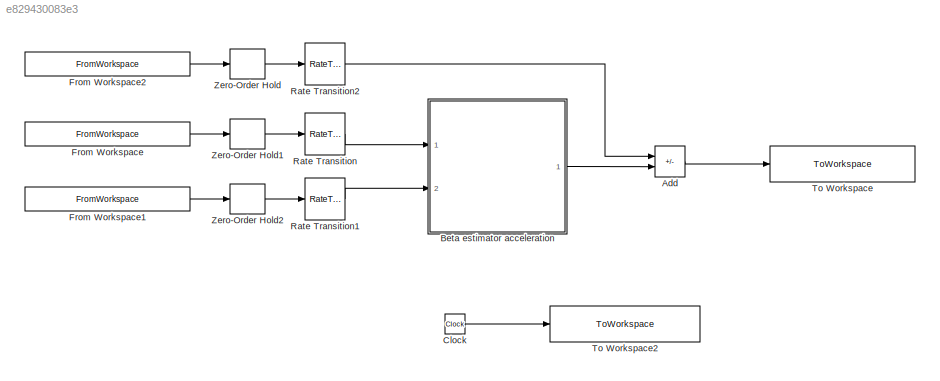
MODEL slx_e829430083e3
KIND model
CONFIG AbsTol = 1e-10
CONFIG EnableMultiTasking = off
CONFIG FixedStep = 1e-3
CONFIG MaxStep = auto
CONFIG MinStep = auto
CONFIG RelTol = 1e-6
CONFIG SampleTimeConstraint = Unconstrained
CONFIG SolverName = VariableStepAuto
CONFIG StartTime = 0.0
CONFIG StopTime = 10.0
BLOCK [Sum] Add
  IconShape = rectangular
  Inputs = -+
  Ports = [2, 1]
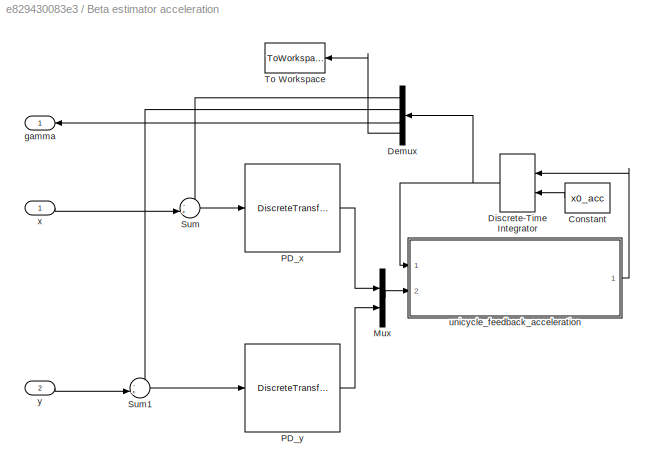
BLOCK [SubSystem] Beta estimator acceleration
  Ports = [2, 1]
  RequestExecContextInheritance = off
  SystemSampleTime = Ts
BLOCK [Constant] Beta estimator acceleration/Constant
  Value = x0_acc
BLOCK [Demux] Beta estimator acceleration/Demux
  Ports = [1, 4]
BLOCK [DiscreteIntegrator] Beta estimator acceleration/Discrete-Time Integrator
  ICPrevOutput = DiscIntNeverNeededParam
  ICPrevScaledInput = DiscIntNeverNeededParam
  InitialCondition = [0 0 0 0.1]
  InitialConditionSetting = Auto
  InitialConditionSource = external
  Ports = [2, 1]
  SampleTime = Ts
BLOCK [Mux] Beta estimator acceleration/Mux
  DisplayOption = bar
  Inputs = 2
  Ports = [2, 1]
BLOCK [DiscreteTransferFcn] Beta estimator acceleration/PD_x
  Denominator = Den_PDa
  InputPortMap = u0
  Numerator = Num_PDa
  Ports = [1, 1]
  SampleTime = Ts
  a0EqualsOne = on
BLOCK [DiscreteTransferFcn] Beta estimator acceleration/PD_y
  Denominator = Den_PDa
  InputPortMap = u0
  Numerator = Num_PDa
  Ports = [1, 1]
  SampleTime = Ts
  a0EqualsOne = on
BLOCK [Sum] Beta estimator acceleration/Sum
  Inputs = -+|
  Ports = [2, 1]
BLOCK [Sum] Beta estimator acceleration/Sum1
  Inputs = -+|
  Ports = [2, 1]
BLOCK [ToWorkspace] Beta estimator acceleration/To Workspace
  FixptAsFi = on
  MaxDataPoints = inf
  Ports = [1]
  SampleTime = -1
  SaveFormat = Timeseries
  VariableName = v
BLOCK [Outport] Beta estimator acceleration/gamma
  VectorParamsAs1DForOutWhenUnconnected = off
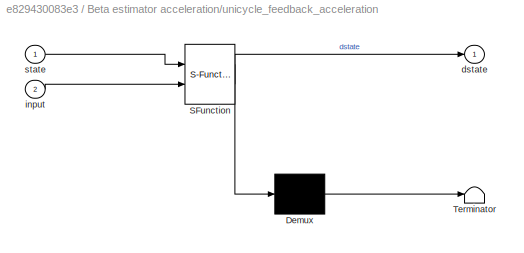
BLOCK [SubSystem] Beta estimator acceleration/unicycle_feedback_acceleration
  ErrorFcn = Stateflow.Translate.translate
  PermitHierarchicalResolution = ExplicitOnly
  Ports = [2, 1]
  RequestExecContextInheritance = off
  SFBlockType = MATLAB Function
  TreatAsAtomicUnit = on
BLOCK [Demux] Beta estimator acceleration/unicycle_feedback_acceleration/ Demux 
  Outputs = 1
  Ports = [1, 1]
BLOCK [S-Function] Beta estimator acceleration/unicycle_feedback_acceleration/ SFunction 
  EnableBusSupport = off
  FunctionName = sf_sfun
  PortCounts = [2 2]
  Ports = [2, 2]
  SFcnIsStateOwnerBlock = off
  SFunctionDeploymentMode = off
  Tag = Stateflow S-Function 2
BLOCK [Terminator] Beta estimator acceleration/unicycle_feedback_acceleration/ Terminator 
BLOCK [Outport] Beta estimator acceleration/unicycle_feedback_acceleration/dstate
  VectorParamsAs1DForOutWhenUnconnected = off
BLOCK [Inport] Beta estimator acceleration/unicycle_feedback_acceleration/input
  Port = 2
BLOCK [Inport] Beta estimator acceleration/unicycle_feedback_acceleration/state
BLOCK [Inport] Beta estimator acceleration/x
BLOCK [Inport] Beta estimator acceleration/y
  Port = 2
BLOCK [Clock] Clock
BLOCK [FromWorkspace] From Workspace
  OutputAfterFinalValue = Holding final value
  VariableName = [acc_cpp_res.t,acc_cpp_res.x]
BLOCK [FromWorkspace] From Workspace1
  OutputAfterFinalValue = Holding final value
  VariableName = [acc_cpp_res.t,acc_cpp_res.y]
BLOCK [FromWorkspace] From Workspace2
  OutputAfterFinalValue = Holding final value
  VariableName = [acc_cpp_res.t,acc_cpp_res.psi]
BLOCK [RateTransition] Rate Transition
  OutPortSampleTime = Ts
BLOCK [RateTransition] Rate Transition1
  OutPortSampleTime = Ts
BLOCK [RateTransition] Rate Transition2
  OutPortSampleTime = Ts
BLOCK [ToWorkspace] To Workspace
  FixptAsFi = on
  MaxDataPoints = inf
  Ports = [1]
  SampleTime = Ts
  Save2DSignal = 2-D array (concatenate along first dimension)
  VariableName = beta_est
BLOCK [ToWorkspace] To Workspace2
  FixptAsFi = on
  MaxDataPoints = inf
  Ports = [1]
  SampleTime = 0.001
  Save2DSignal = 2-D array (concatenate along first dimension)
  VariableName = t
BLOCK [ZeroOrderHold] Zero-Order Hold
  SampleTime = 0.01
BLOCK [ZeroOrderHold] Zero-Order Hold1
  SampleTime = 0.01
BLOCK [ZeroOrderHold] Zero-Order Hold2
  SampleTime = 0.01
LINE Add:1 -> To Workspace:1
LINE Beta estimator acceleration/Constant:1 -> Beta estimator acceleration/Discrete-Time Integrator:2
LINE Beta estimator acceleration/Demux:1 -> Beta estimator acceleration/Sum:1
LINE Beta estimator acceleration/Demux:2 -> Beta estimator acceleration/Sum1:1
LINE Beta estimator acceleration/Demux:3 -> Beta estimator acceleration/gamma:1
LINE Beta estimator acceleration/Demux:4 -> Beta estimator acceleration/To Workspace:1
NET Beta estimator acceleration/Discrete-Time Integrator:1 -> Beta estimator acceleration/Demux:1, Beta estimator acceleration/unicycle_feedback_acceleration:1
LINE Beta estimator acceleration/Mux:1 -> Beta estimator acceleration/unicycle_feedback_acceleration:2
LINE Beta estimator acceleration/PD_x:1 -> Beta estimator acceleration/Mux:1
LINE Beta estimator acceleration/PD_y:1 -> Beta estimator acceleration/Mux:2
LINE Beta estimator acceleration/Sum1:1 -> Beta estimator acceleration/PD_y:1
LINE Beta estimator acceleration/Sum:1 -> Beta estimator acceleration/PD_x:1
LINE Beta estimator acceleration/unicycle_feedback_acceleration:1 -> Beta estimator acceleration/Discrete-Time Integrator:1
LINE Beta estimator acceleration/x:1 -> Beta estimator acceleration/Sum:2
LINE Beta estimator acceleration/y:1 -> Beta estimator acceleration/Sum1:2
LINE Beta estimator acceleration:1 -> Add:2
LINE Clock:1 -> To Workspace2:1
LINE From Workspace1:1 -> Zero-Order Hold2:1
LINE From Workspace2:1 -> Zero-Order Hold:1
LINE From Workspace:1 -> Zero-Order Hold1:1
LINE Rate Transition1:1 -> Beta estimator acceleration:2
LINE Rate Transition2:1 -> Add:1
LINE Rate Transition:1 -> Beta estimator acceleration:1
LINE Zero-Order Hold1:1 -> Rate Transition:1
LINE Zero-Order Hold2:1 -> Rate Transition1:1
LINE Zero-Order Hold:1 -> Rate Transition2:1
note: NET lines group one-source signal fan-out (src -> all destinations, sorted); 1:1 wires keep LINE
CHART Beta estimator acceleration/unicycle_feedback_acceleration states=1 transitions=1
  STATE_LABEL 'eML_blk_kernel()'
  STATE_LABEL 'SCRIPT:\nfunction dstate = unicycle_feedback_acceleration(state,input)\n\n% State and input variables\nx     = state(1); %[m]\ny     = state(2); %[m]\ngamma = state(3); % theta+beta [rad]\nv     = state(4); %[m/s]\n\nax    = input(1); %[m/s^2]\nay    = input(2); %[m/s^2]\n\n    % Model equations\n    dstate = zeros(4,1);\n    dstate(1) = v*cos(gamma); %dx/dt\n    dstate(2) = v*sin(gamma); %dy/dt\n    dstate(3) = ...<+101ch>'
CHART  states=0 transitions=0
